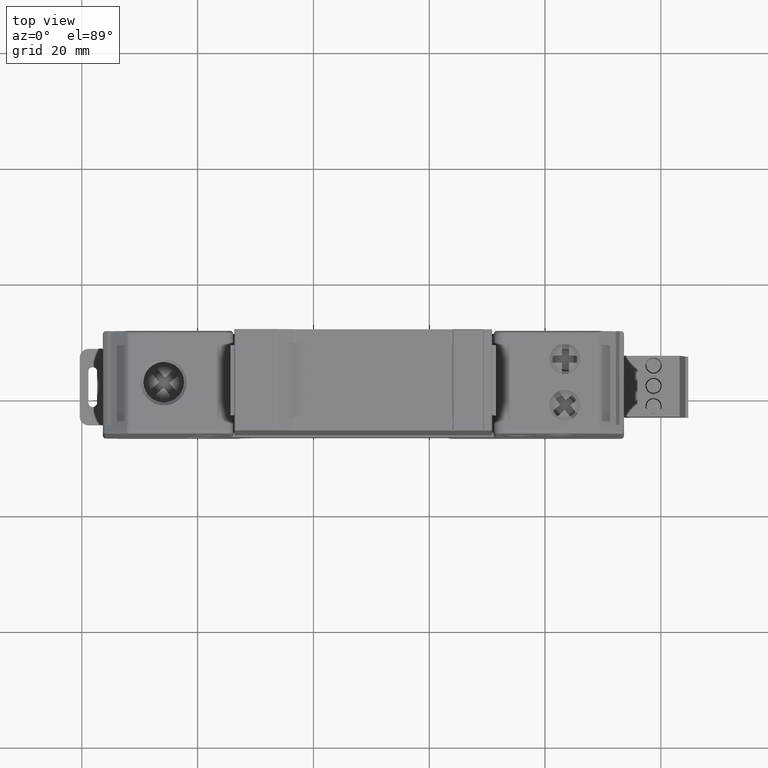
[diagram: clean part render]
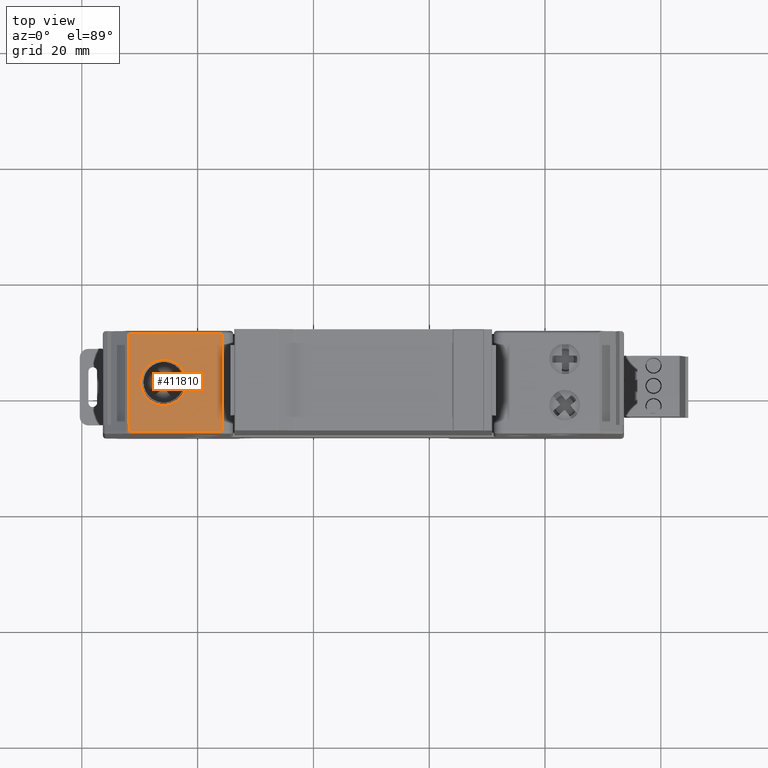
[diagram: same view with one face highlighted and labeled with its STEP entity id]
A machine part, top view. The second image highlights one B-rep face of the part: STEP entity #411810.
In plain terms, the highlighted planar face has unit normal (0, 0, -1).
Its self-contained STEP definition (entity closure, byte-faithful):
#6070=CARTESIAN_POINT('',(-212.397462419112,929.411242401068,
58.7128690000004));
#6080=VERTEX_POINT('',#6070);
#6110=CARTESIAN_POINT('',(-212.745219310265,929.411242401068,
58.7128690000001));
#6120=DIRECTION('',(1.,0.,0.));
#6130=VECTOR('',#6120,1.);
#6140=LINE('',#6110,#6130);
#6150=CARTESIAN_POINT('',(-212.215249135638,929.411242401068,
58.7128690000012));
#6160=VERTEX_POINT('',#6150);
#6170=EDGE_CURVE('',#6080,#6160,#6140,.T.);
#59070=CARTESIAN_POINT('',(-202.407462,936.711242401068,58.7128690000001
));
#59080=VERTEX_POINT('',#59070);
#59110=CARTESIAN_POINT('',(-206.407462,936.711242401068,58.7128690000001
));
#59120=DIRECTION('',(0.,0.,1.));
#59130=DIRECTION('',(1.,0.,0.));
#59140=AXIS2_PLACEMENT_3D('',#59110,#59120,#59130);
#59150=CIRCLE('',#59140,4.);
#59160=CARTESIAN_POINT('',(-210.407462,936.711242401068,58.7128690000001
));
#59170=VERTEX_POINT('',#59160);
#59180=EDGE_CURVE('',#59170,#59080,#59150,.T.);
#62300=CARTESIAN_POINT('',(-196.207462,928.311242401068,58.7128690000007
));
#62310=VERTEX_POINT('',#62300);
#62340=CARTESIAN_POINT('',(-196.207462,945.611242401068,58.7128690000001
));
#62350=DIRECTION('',(0.,-1.,0.));
#62360=VECTOR('',#62350,1.);
#62370=LINE('',#62340,#62360);
#62380=CARTESIAN_POINT('',(-196.207462,945.111242401068,58.7128690000001
));
#62390=VERTEX_POINT('',#62380);
#62400=EDGE_CURVE('',#62390,#62310,#62370,.T.);
#112810=CARTESIAN_POINT('',(-212.397462419112,945.111242401068,
58.7128690000001));
#112820=VERTEX_POINT('',#112810);
#112850=CARTESIAN_POINT('',(-212.397462419112,945.611242401068,
58.7128690000001));
#112860=DIRECTION('',(0.,-1.,0.));
#112870=VECTOR('',#112860,1.);
#112880=LINE('',#112850,#112870);
#112890=EDGE_CURVE('',#112820,#6080,#112880,.T.);
#126580=CARTESIAN_POINT('',(-212.745219310265,945.111242401068,
58.7128690000001));
#126590=DIRECTION('',(-1.,1.22464679914735E-16,0.));
#126600=VECTOR('',#126590,1.);
#126610=LINE('',#126580,#126600);
#126620=EDGE_CURVE('',#62390,#112820,#126610,.T.);
#275660=EDGE_CURVE('',#59080,#59170,#59150,.T.);
#410620=CARTESIAN_POINT('',(-212.215249135638,928.311242401068,
58.7128690000012));
#410630=VERTEX_POINT('',#410620);
#410920=CARTESIAN_POINT('',(-192.283268263651,928.311242401068,
58.7128690000012));
#410930=DIRECTION('',(1.,0.,0.));
#410940=VECTOR('',#410930,1.);
#410950=LINE('',#410920,#410940);
#410960=EDGE_CURVE('',#410630,#62310,#410950,.T.);
#411590=CARTESIAN_POINT('',(-212.397248716527,926.411240001068,
58.7128690000012));
#411600=DIRECTION('',(0.,0.,-1.));
#411610=DIRECTION('',(1.,0.,0.));
#411620=AXIS2_PLACEMENT_3D('',#411590,#411600,#411610);
#411630=PLANE('',#411620);
#411640=ORIENTED_EDGE('',*,*,#275660,.F.);
#411650=ORIENTED_EDGE('',*,*,#59180,.F.);
#411660=EDGE_LOOP('',(#411650,#411640));
#411670=FACE_BOUND('',#411660,.T.);
#411680=ORIENTED_EDGE('',*,*,#6170,.T.);
#411690=ORIENTED_EDGE('',*,*,#112890,.T.);
#411700=ORIENTED_EDGE('',*,*,#126620,.T.);
#411710=ORIENTED_EDGE('',*,*,#62400,.F.);
#411720=ORIENTED_EDGE('',*,*,#410960,.T.);
#411730=CARTESIAN_POINT('',(-212.215249135638,941.811242401068,
58.7128690000012));
#411740=DIRECTION('',(0.,-1.,0.));
#411750=VECTOR('',#411740,1.);
#411760=LINE('',#411730,#411750);
#411770=EDGE_CURVE('',#6160,#410630,#411760,.T.);
#411780=ORIENTED_EDGE('',*,*,#411770,.T.);
#411790=EDGE_LOOP('',(#411780,#411720,#411710,#411700,#411690,#411680));
#411800=FACE_OUTER_BOUND('',#411790,.T.);
#411810=ADVANCED_FACE('',(#411670,#411800),#411630,.F.);